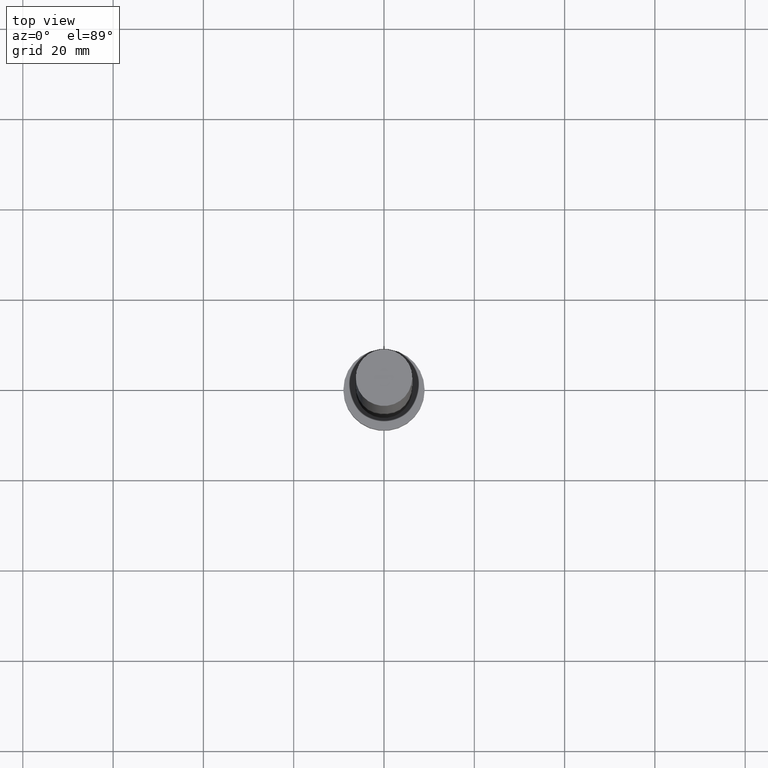
[diagram: clean part render]
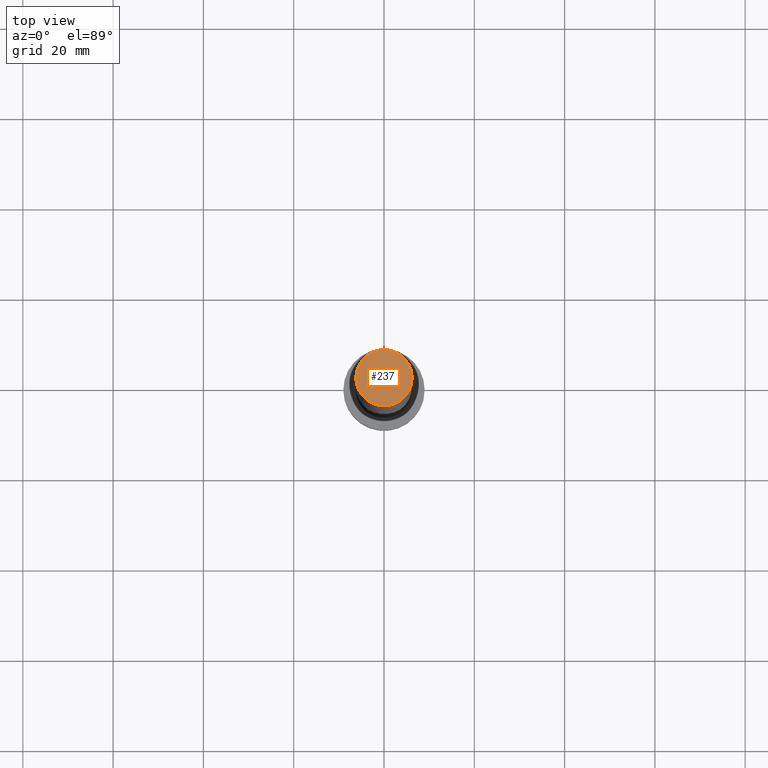
[diagram: same view with one face highlighted and labeled with its STEP entity id]
A machine part, top view. The second image highlights one B-rep face of the part: STEP entity #237.
In plain terms, the highlighted planar face has unit normal (0, 0, 1).
Its self-contained STEP definition (entity closure, byte-faithful):
#15 = ORIENTED_EDGE ( 'NONE', *, *, #203, .T. ) ;
#27 = EDGE_CURVE ( 'NONE', #183, #52, #145, .T. ) ;
#30 = DIRECTION ( 'NONE',  ( 0.000000000000000000, 0.000000000000000000, 1.000000000000000000 ) ) ;
#40 = AXIS2_PLACEMENT_3D ( 'NONE', #152, #42, #56 ) ;
#42 = DIRECTION ( 'NONE',  ( 0.000000000000000000, 0.000000000000000000, 1.000000000000000000 ) ) ;
#52 = VERTEX_POINT ( 'NONE', #244 ) ;
#56 = DIRECTION ( 'NONE',  ( 1.000000000000000000, 0.000000000000000000, 0.000000000000000000 ) ) ;
#61 = PLANE ( 'NONE',  #98 ) ;
#62 = DIRECTION ( 'NONE',  ( 0.000000000000000000, 0.000000000000000000, 1.000000000000000000 ) ) ;
#98 = AXIS2_PLACEMENT_3D ( 'NONE', #243, #30, #101 ) ;
#101 = DIRECTION ( 'NONE',  ( 1.000000000000000000, 0.000000000000000000, -0.000000000000000000 ) ) ;
#113 = CIRCLE ( 'NONE', #40, 6.250000000000000000 ) ;
#124 = DIRECTION ( 'NONE',  ( 1.000000000000000000, 0.000000000000000000, 0.000000000000000000 ) ) ;
#132 = AXIS2_PLACEMENT_3D ( 'NONE', #212, #62, #124 ) ;
#145 = CIRCLE ( 'NONE', #132, 6.250000000000000000 ) ;
#152 = CARTESIAN_POINT ( 'NONE',  ( 0.000000000000000000, 0.000000000000000000, 160.0000000000000000 ) ) ;
#160 = FACE_OUTER_BOUND ( 'NONE', #247, .T. ) ;
#183 = VERTEX_POINT ( 'NONE', #195 ) ;
#195 = CARTESIAN_POINT ( 'NONE',  ( -6.250000000000000000, 0.000000000000000000, 160.0000000000000000 ) ) ;
#203 = EDGE_CURVE ( 'NONE', #52, #183, #113, .T. ) ;
#212 = CARTESIAN_POINT ( 'NONE',  ( 0.000000000000000000, 0.000000000000000000, 160.0000000000000000 ) ) ;
#226 = ORIENTED_EDGE ( 'NONE', *, *, #27, .T. ) ;
#237 = ADVANCED_FACE ( 'NONE', ( #160 ), #61, .T. ) ;
#243 = CARTESIAN_POINT ( 'NONE',  ( 0.000000000000000000, 0.000000000000000000, 160.0000000000000000 ) ) ;
#244 = CARTESIAN_POINT ( 'NONE',  ( 6.250000000000000000, 7.654042494670957606E-16, 160.0000000000000000 ) ) ;
#247 = EDGE_LOOP ( 'NONE', ( #226, #15 ) ) ;